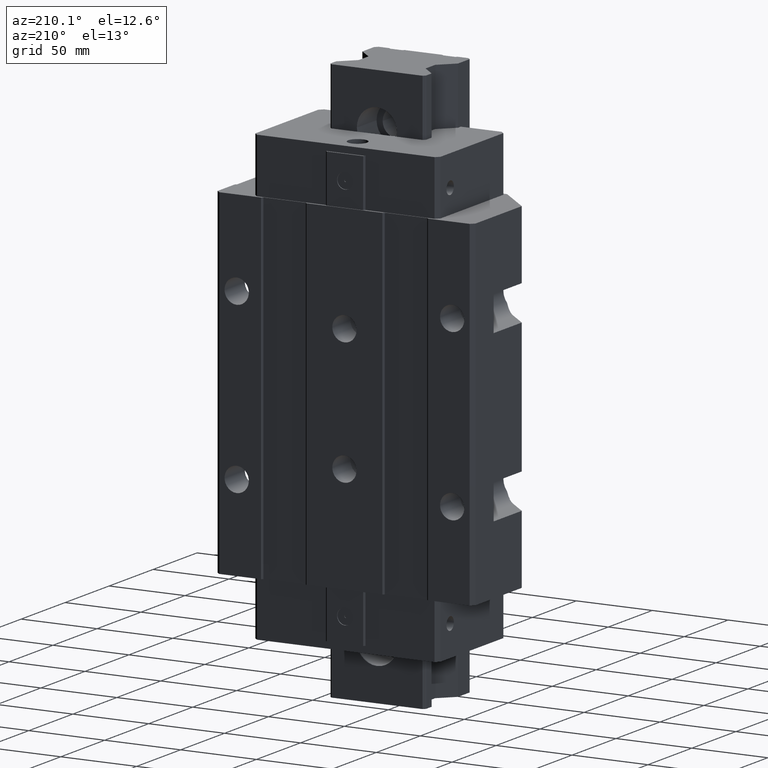
[diagram: clean part render]
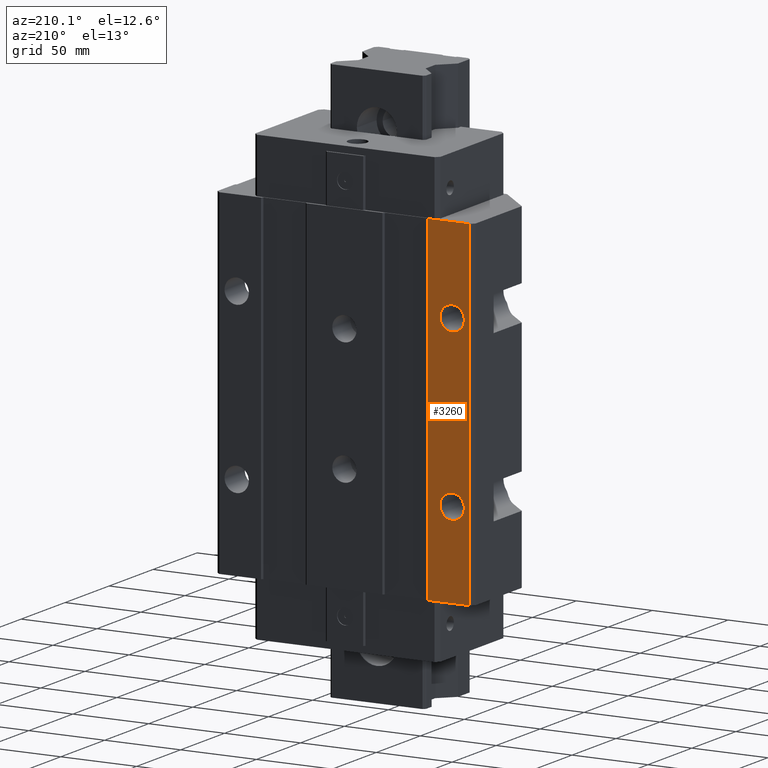
[diagram: same view with one face highlighted and labeled with its STEP entity id]
A machine part, auxiliary view. The second image highlights one B-rep face of the part: STEP entity #3260.
In plain terms, the highlighted planar face has unit normal (0, 1, 0).
Its self-contained STEP definition (entity closure, byte-faithful):
#73=DIRECTION('',(-1.E0,2.289079798329E-14,0.E0));
#74=VECTOR('',#73,2.749997861245E1);
#75=CARTESIAN_POINT('',(-5.500008138755E1,-7.194245199571E-13,-1.115E2));
#76=LINE('',#75,#74);
#924=DIRECTION('',(0.E0,0.E0,1.E0));
#925=VECTOR('',#924,2.23E2);
#926=CARTESIAN_POINT('',(-5.500008138755E1,-7.194245199571E-13,-1.115E2));
#927=LINE('',#926,#925);
#928=DIRECTION('',(-1.E0,2.289079798329E-14,0.E0));
#929=VECTOR('',#928,2.749997861245E1);
#930=CARTESIAN_POINT('',(-5.500008138755E1,-7.194245199571E-13,1.115E2));
#931=LINE('',#930,#929);
#940=CARTESIAN_POINT('',(-7.1E1,0.E0,-5.5E1));
#941=DIRECTION('',(0.E0,1.E0,0.E0));
#942=DIRECTION('',(0.E0,0.E0,-1.E0));
#943=AXIS2_PLACEMENT_3D('',#940,#941,#942);
#945=CARTESIAN_POINT('',(-7.1E1,0.E0,-5.5E1));
#946=DIRECTION('',(0.E0,1.E0,0.E0));
#947=DIRECTION('',(0.E0,0.E0,1.E0));
#948=AXIS2_PLACEMENT_3D('',#945,#946,#947);
#950=CARTESIAN_POINT('',(-7.1E1,0.E0,5.5E1));
#951=DIRECTION('',(0.E0,1.E0,0.E0));
#952=DIRECTION('',(0.E0,0.E0,-1.E0));
#953=AXIS2_PLACEMENT_3D('',#950,#951,#952);
#955=CARTESIAN_POINT('',(-7.1E1,0.E0,5.5E1));
#956=DIRECTION('',(0.E0,1.E0,0.E0));
#957=DIRECTION('',(0.E0,0.E0,1.E0));
#958=AXIS2_PLACEMENT_3D('',#955,#956,#957);
#1226=DIRECTION('',(0.E0,0.E0,1.E0));
#1227=VECTOR('',#1226,2.23E2);
#1228=CARTESIAN_POINT('',(-8.250006E1,-8.992806499464E-14,-1.115E2));
#1229=LINE('',#1228,#1227);
#1641=CARTESIAN_POINT('',(-5.500008138755E1,-7.194245199571E-13,-1.115E2));
#1642=VERTEX_POINT('',#1641);
#1643=CARTESIAN_POINT('',(-8.250006E1,-8.992806499464E-14,-1.115E2));
#1644=VERTEX_POINT('',#1643);
#1891=CARTESIAN_POINT('',(-8.250006E1,-9.015010959956E-14,1.115E2));
#1892=VERTEX_POINT('',#1891);
#1893=CARTESIAN_POINT('',(-5.500008138755E1,-7.194245199571E-13,1.115E2));
#1894=VERTEX_POINT('',#1893);
#2053=CARTESIAN_POINT('',(-7.1E1,0.E0,-6.3E1));
#2054=CARTESIAN_POINT('',(-7.1E1,0.E0,-4.7E1));
#2055=VERTEX_POINT('',#2053);
#2056=VERTEX_POINT('',#2054);
#2057=CARTESIAN_POINT('',(-7.1E1,0.E0,4.7E1));
#2058=CARTESIAN_POINT('',(-7.1E1,0.E0,6.3E1));
#2059=VERTEX_POINT('',#2057);
#2060=VERTEX_POINT('',#2058);
#3236=CARTESIAN_POINT('',(2.499994E1,0.E0,-8.E1));
#3237=DIRECTION('',(0.E0,1.E0,0.E0));
#3238=DIRECTION('',(-1.E0,0.E0,0.E0));
#3239=AXIS2_PLACEMENT_3D('',#3236,#3237,#3238);
#3240=PLANE('',#3239);
#3241=ORIENTED_EDGE('',*,*,#2146,.F.);
#3243=ORIENTED_EDGE('',*,*,#3242,.T.);
#3244=ORIENTED_EDGE('',*,*,#2378,.T.);
#3246=ORIENTED_EDGE('',*,*,#3245,.F.);
#3247=EDGE_LOOP('',(#3241,#3243,#3244,#3246));
#3248=FACE_OUTER_BOUND('',#3247,.F.);
#3249=ORIENTED_EDGE('',*,*,#3200,.T.);
#3251=ORIENTED_EDGE('',*,*,#3250,.T.);
#3252=EDGE_LOOP('',(#3249,#3251));
#3253=FACE_BOUND('',#3252,.F.);
#3255=ORIENTED_EDGE('',*,*,#3254,.T.);
#3257=ORIENTED_EDGE('',*,*,#3256,.T.);
#3258=EDGE_LOOP('',(#3255,#3257));
#3259=FACE_BOUND('',#3258,.F.);
#3260=ADVANCED_FACE('',(#3248,#3253,#3259),#3240,.T.);
#944=CIRCLE('',#943,8.E0);
#949=CIRCLE('',#948,8.E0);
#954=CIRCLE('',#953,8.E0);
#959=CIRCLE('',#958,8.E0);
#2146=EDGE_CURVE('',#1642,#1644,#76,.T.);
#2378=EDGE_CURVE('',#1894,#1892,#931,.T.);
#3200=EDGE_CURVE('',#2055,#2056,#944,.T.);
#3242=EDGE_CURVE('',#1642,#1894,#927,.T.);
#3245=EDGE_CURVE('',#1644,#1892,#1229,.T.);
#3250=EDGE_CURVE('',#2056,#2055,#949,.T.);
#3254=EDGE_CURVE('',#2059,#2060,#954,.T.);
#3256=EDGE_CURVE('',#2060,#2059,#959,.T.);